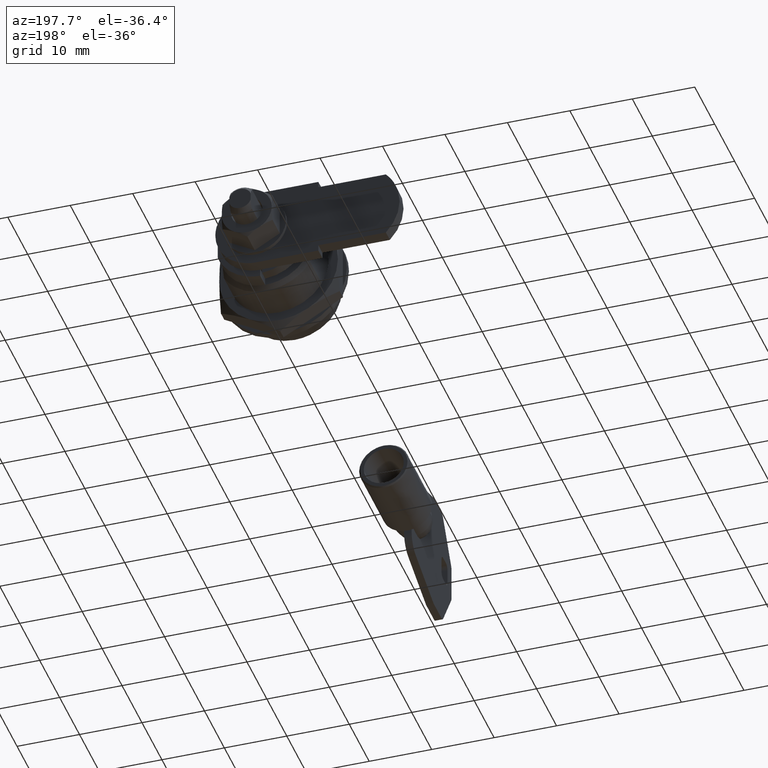
[diagram: clean part render]
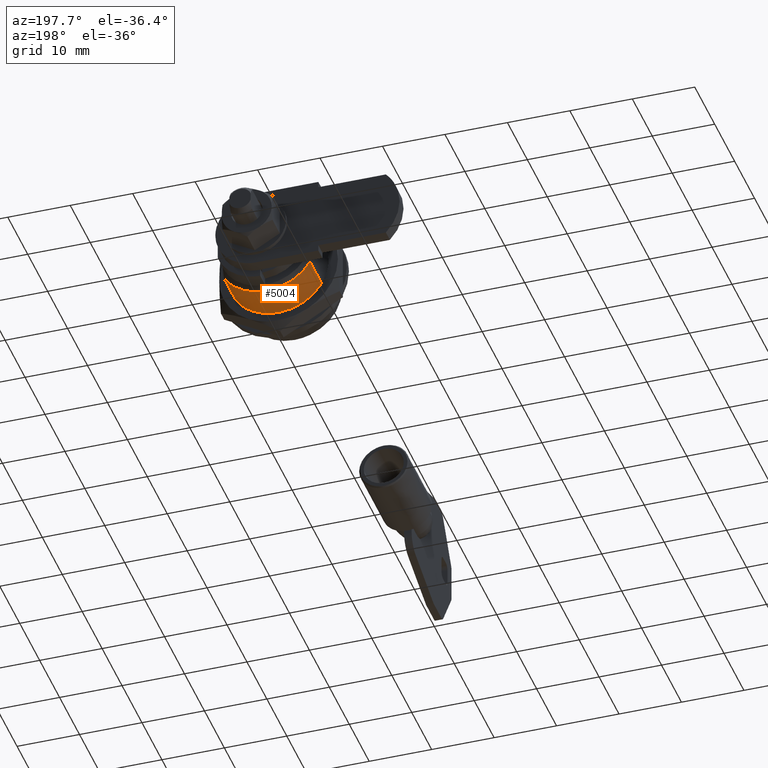
[diagram: same view with one face highlighted and labeled with its STEP entity id]
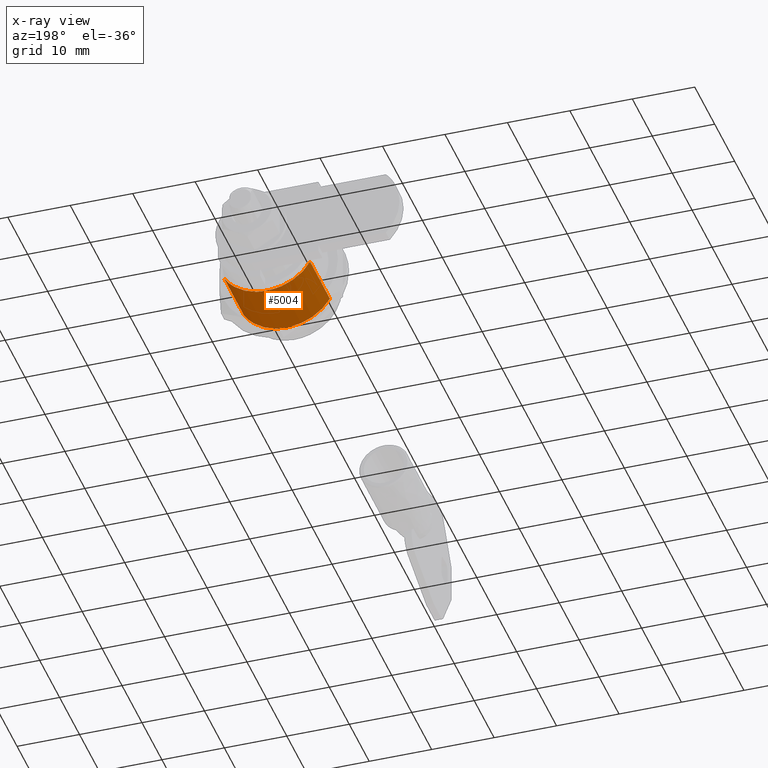
[diagram: x-ray of the same camera — body ghosted, the highlighted face saturated]
A machine part, auxiliary view. The second image highlights one B-rep face of the part: STEP entity #5004.
The next image is the same camera in x-ray: the body ghosted, the highlighted face saturated — about 0% of this face is hidden behind the body in this view.
In plain terms, the highlighted face is a freeform B-spline surface patch.
Its self-contained STEP definition (entity closure, byte-faithful):
#4199=CARTESIAN_POINT('',(13.949707142857040,6.900000000000000,-4.048456495999420));
#4200=VERTEX_POINT('',#4199);
#4201=CARTESIAN_POINT('',(3.999800000000001,6.900000000000000,-4.048456495999416));
#4202=VERTEX_POINT('',#4201);
#4203=CARTESIAN_POINT('',(13.949707142857040,6.900000000000000,-4.048456495999420));
#4204=CARTESIAN_POINT('',(3.999800000000001,6.900000000000000,-4.048456495999416));
#4205=QUASI_UNIFORM_CURVE('',1,(#4203,#4204),.UNSPECIFIED.,.F.,.U.);
#4206=EDGE_CURVE('',#4200,#4202,#4205,.T.);
#4270=CARTESIAN_POINT('',(3.999800000000111,-6.900000000000000,-4.048456495999420));
#4271=VERTEX_POINT('',#4270);
#4277=CARTESIAN_POINT('',(13.949707142857040,-6.900000000000000,-4.048456495999416));
#4278=VERTEX_POINT('',#4277);
#4279=CARTESIAN_POINT('',(13.949707142857040,-6.900000000000000,-4.048456495999416));
#4280=CARTESIAN_POINT('',(3.999800000000111,-6.900000000000000,-4.048456495999420));
#4281=QUASI_UNIFORM_CURVE('',1,(#4279,#4280),.UNSPECIFIED.,.F.,.U.);
#4282=EDGE_CURVE('',#4278,#4271,#4281,.T.);
#4786=CARTESIAN_POINT('',(3.999800000000001,6.900000000000000,-4.048456495999416));
#4787=CARTESIAN_POINT('',(3.999799999999996,6.593042666026864,-4.571871470872709));
#4788=CARTESIAN_POINT('',(3.999799999999995,6.055711898190046,-5.286649812543395));
#4789=CARTESIAN_POINT('',(3.999799999999983,5.048854324468842,-6.243309052014681));
#4790=CARTESIAN_POINT('',(3.999799999999963,3.927761039130303,-7.032892826179847));
#4791=CARTESIAN_POINT('',(3.999800000000065,2.608345659006239,-7.606954109035226));
#4792=CARTESIAN_POINT('',(3.999799999999932,1.299096372112698,-7.921250514370910));
#4793=CARTESIAN_POINT('',(3.999800000000060,0.217101747910791,-8.022651949487550));
#4794=CARTESIAN_POINT('',(3.999800000000010,-1.127652166274761,-7.962617714431079));
#4795=CARTESIAN_POINT('',(3.999799999999950,-2.404909633733868,-7.677780074842562));
#4796=CARTESIAN_POINT('',(3.999800000000053,-3.624175765794708,-7.158876442965549));
#4797=CARTESIAN_POINT('',(3.999799999999998,-4.819012412032065,-6.448834517807776));
#4798=CARTESIAN_POINT('',(3.999800000000144,-5.961040286729626,-5.432216865267610));
#4799=CARTESIAN_POINT('',(3.999800000000064,-6.647797521652493,-4.478353633047746));
#4800=CARTESIAN_POINT('',(3.999800000000111,-6.900000000000000,-4.048456495999420));
#4801=B_SPLINE_CURVE_WITH_KNOTS('',3,(#4786,#4787,#4788,#4789,#4790,#4791,#4792,#4793,#4794,#4795,#4796,#4797,#4798,#4799,#4800),.UNSPECIFIED.,.F.,.U.,(4,1,1,1,1,1,1,1,1,1,1,1,4),(0.000000143227439,1.820306340755924,2.665472000903614,4.160769463878825,5.916099735931452,6.956298696760520,8.191541124816764,9.166649502379695,10.987027958215050,12.092229007222890,13.132427771912999,15.147806434230381,16.643073352633021),.UNSPECIFIED.);
#4802=EDGE_CURVE('',#4202,#4271,#4801,.T.);
#4922=CARTESIAN_POINT('',(13.949707142857040,6.900000000000000,-4.048456495999420));
#4923=CARTESIAN_POINT('',(13.949707142857070,6.538298354230256,-4.665397733344790));
#4924=CARTESIAN_POINT('',(13.949707142856999,5.715269949311699,-5.714985889202289));
#4925=CARTESIAN_POINT('',(13.949707142857180,4.334956030860248,-6.782427006086225));
#4926=CARTESIAN_POINT('',(13.949707142856919,3.209368435502215,-7.350164406424848));
#4927=CARTESIAN_POINT('',(13.949707142857580,2.168390464496477,-7.724734982945072));
#4928=CARTESIAN_POINT('',(13.949707142856070,1.127305556627323,-7.952457133331123));
#4929=CARTESIAN_POINT('',(13.949707142858131,-0.325410847543729,-8.041211176391535));
#4930=CARTESIAN_POINT('',(13.949707142856640,-1.732517760805530,-7.863031203447490));
#4931=CARTESIAN_POINT('',(13.949707142857120,-3.155646897591175,-7.389721116403308));
#4932=CARTESIAN_POINT('',(13.949707142857060,-4.522963952715976,-6.671948533320061));
#4933=CARTESIAN_POINT('',(13.949707142857029,-5.848476366102136,-5.567143637901191));
#4934=CARTESIAN_POINT('',(13.949707142857051,-6.603976541047312,-4.553141805267422));
#4935=CARTESIAN_POINT('',(13.949707142857040,-6.900000000000000,-4.048456495999416));
#4936=B_SPLINE_CURVE_WITH_KNOTS('',3,(#4922,#4923,#4924,#4925,#4926,#4927,#4928,#4929,#4930,#4931,#4932,#4933,#4934,#4935),.UNSPECIFIED.,.F.,.U.,(4,1,1,1,1,1,1,1,1,1,1,4),(0.000000143228569,2.145385709850082,3.965730882274661,5.200968928965351,5.916099735931939,7.281376116044552,8.386498433886816,10.271890388754709,11.507112235072871,12.872381091067339,14.887776411525310,16.643073352633031),.UNSPECIFIED.);
#4937=EDGE_CURVE('',#4200,#4278,#4936,.T.);
#4984=CARTESIAN_POINT('',(14.198454821428470,-7.057116708669389,-3.767904425568581));
#4985=CARTESIAN_POINT('',(3.744833629464273,-7.057116708669389,-3.767904425568581));
#4986=CARTESIAN_POINT('',(14.198454821428466,0.337812100690858,-17.618275816579054));
#4987=CARTESIAN_POINT('',(3.744833629464273,0.337812100690858,-17.618275816579054));
#4988=CARTESIAN_POINT('',(14.198454821428470,7.196367838528220,-3.494608695204176));
#4989=CARTESIAN_POINT('',(3.744833629464273,7.196367838528220,-3.494608695204176));
#4997=(BOUNDED_SURFACE()B_SPLINE_SURFACE(1,2,((#4984,#4986,#4988),(#4985,#4987,#4989)),.UNSPECIFIED.,.F.,.F.,.U.)B_SPLINE_SURFACE_WITH_KNOTS((2,2),(3,3),(0.0,10.453621191964190),(0.0,19.609625220477820),.UNSPECIFIED.)GEOMETRIC_REPRESENTATION_ITEM()RATIONAL_B_SPLINE_SURFACE(((1.0,0.453990499739547,1.0),(1.0,0.453990499739547,1.0)))REPRESENTATION_ITEM('')SURFACE());
#4998=ORIENTED_EDGE('',*,*,#4802,.F.);
#4999=ORIENTED_EDGE('',*,*,#4206,.F.);
#5000=ORIENTED_EDGE('',*,*,#4937,.T.);
#5001=ORIENTED_EDGE('',*,*,#4282,.T.);
#5002=EDGE_LOOP('',(#4998,#4999,#5000,#5001));
#5003=FACE_OUTER_BOUND('',#5002,.T.);
#5004=ADVANCED_FACE('',(#5003),#4997,.T.);